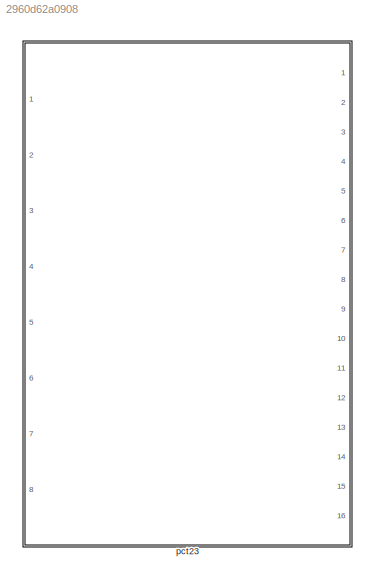
MODEL slx_2960d62a0908
KIND library
CONFIG AbsTol = auto
CONFIG EnableMultiTasking = off
CONFIG FixedStep = auto
CONFIG MaxStep = auto
CONFIG MinStep = auto
CONFIG RelTol = 1e-3
CONFIG SampleTimeConstraint = Unconstrained
CONFIG Solver = VariableStepAuto
CONFIG SolverName = VariableStepAuto
CONFIG StartTime = 0.0
CONFIG StopTime = 10.0
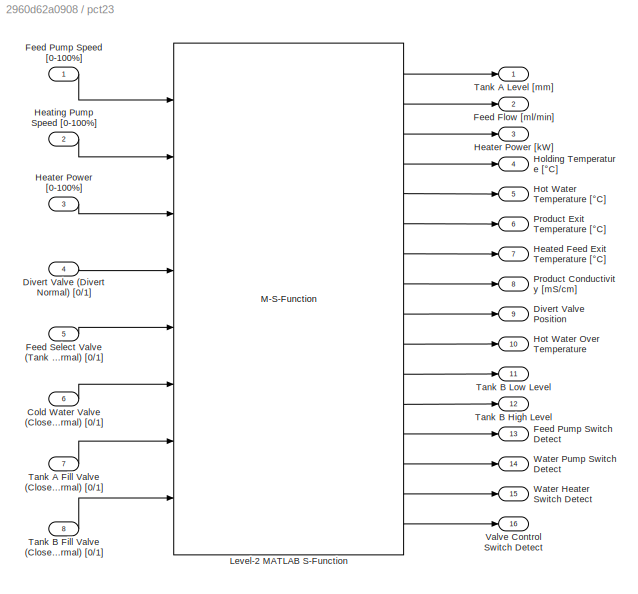
BLOCK [SubSystem] pct23
  Ports = [8, 16]
  RequestExecContextInheritance = off
BLOCK [Inport] pct23/Cold Water Valve (Closed Normal) [0//1]
  IconDisplay = Port number
  Port = 6
BLOCK [Inport] pct23/Divert Valve (Divert Normal) [0//1]
  IconDisplay = Port number
  Port = 4
BLOCK [Outport] pct23/Divert Valve Position
  IconDisplay = Port number
  Port = 9
BLOCK [Outport] pct23/Feed Flow [ml//min]
  IconDisplay = Port number
  Port = 2
BLOCK [Inport] pct23/Feed Pump Speed [0-100%]
  IconDisplay = Port number
BLOCK [Outport] pct23/Feed Pump Switch Detect
  IconDisplay = Port number
  Port = 13
BLOCK [Inport] pct23/Feed Select Valve (Tank A Normal) [0//1]
  IconDisplay = Port number
  Port = 5
BLOCK [Outport] pct23/Heated Feed Exit Temperature [°C]
  IconDisplay = Port number
  Port = 7
BLOCK [Inport] pct23/Heater Power [0-100%]
  IconDisplay = Port number
  Port = 3
BLOCK [Outport] pct23/Heater Power [kW]
  IconDisplay = Port number
  Port = 3
BLOCK [Inport] pct23/Heating Pump Speed [0-100%]
  IconDisplay = Port number
  Port = 2
BLOCK [Outport] pct23/Holding Temperature [°C]
  IconDisplay = Port number
  Port = 4
BLOCK [Outport] pct23/Hot Water Over Temperature
  IconDisplay = Port number
  Port = 10
BLOCK [Outport] pct23/Hot Water Temperature [°C]
  IconDisplay = Port number
  Port = 5
BLOCK [M-S-Function] pct23/Level-2 MATLAB S-Function
  FunctionName = elab_pct23
  Parameters = Ts, address, logging
  Ports = [8, 16]
BLOCK [Outport] pct23/Product Conductivity [mS//cm]
  IconDisplay = Port number
  Port = 8
BLOCK [Outport] pct23/Product Exit Temperature [°C]
  IconDisplay = Port number
  Port = 6
BLOCK [Inport] pct23/Tank A Fill Valve (Closed Normal) [0//1]
  IconDisplay = Port number
  Port = 7
BLOCK [Outport] pct23/Tank A Level [mm]
  IconDisplay = Port number
BLOCK [Inport] pct23/Tank B Fill Valve (Closed Normal) [0//1]
  IconDisplay = Port number
  Port = 8
BLOCK [Outport] pct23/Tank B High Level
  IconDisplay = Port number
  Port = 12
BLOCK [Outport] pct23/Tank B Low Level
  IconDisplay = Port number
  Port = 11
BLOCK [Outport] pct23/Valve Control Switch Detect
  IconDisplay = Port number
  Port = 16
BLOCK [Outport] pct23/Water Heater Switch Detect
  IconDisplay = Port number
  Port = 15
BLOCK [Outport] pct23/Water Pump Switch Detect
  IconDisplay = Port number
  Port = 14
LINE pct23/Cold Water Valve (Closed Normal) [0//1]:1 -> pct23/Level-2 MATLAB S-Function:6
LINE pct23/Divert Valve (Divert Normal) [0//1]:1 -> pct23/Level-2 MATLAB S-Function:4
LINE pct23/Feed Pump Speed [0-100%]:1 -> pct23/Level-2 MATLAB S-Function:1
LINE pct23/Feed Select Valve (Tank A Normal) [0//1]:1 -> pct23/Level-2 MATLAB S-Function:5
LINE pct23/Heater Power [0-100%]:1 -> pct23/Level-2 MATLAB S-Function:3
LINE pct23/Heating Pump Speed [0-100%]:1 -> pct23/Level-2 MATLAB S-Function:2
LINE pct23/Level-2 MATLAB S-Function:1 -> pct23/Tank A Level [mm]:1
LINE pct23/Level-2 MATLAB S-Function:10 -> pct23/Hot Water Over Temperature:1
LINE pct23/Level-2 MATLAB S-Function:11 -> pct23/Tank B Low Level:1
LINE pct23/Level-2 MATLAB S-Function:12 -> pct23/Tank B High Level:1
LINE pct23/Level-2 MATLAB S-Function:13 -> pct23/Feed Pump Switch Detect:1
LINE pct23/Level-2 MATLAB S-Function:14 -> pct23/Water Pump Switch Detect:1
LINE pct23/Level-2 MATLAB S-Function:15 -> pct23/Water Heater Switch Detect:1
LINE pct23/Level-2 MATLAB S-Function:16 -> pct23/Valve Control Switch Detect:1
LINE pct23/Level-2 MATLAB S-Function:2 -> pct23/Feed Flow [ml//min]:1
LINE pct23/Level-2 MATLAB S-Function:3 -> pct23/Heater Power [kW]:1
LINE pct23/Level-2 MATLAB S-Function:4 -> pct23/Holding Temperature [°C]:1
LINE pct23/Level-2 MATLAB S-Function:5 -> pct23/Hot Water Temperature [°C]:1
LINE pct23/Level-2 MATLAB S-Function:6 -> pct23/Product Exit Temperature [°C]:1
LINE pct23/Level-2 MATLAB S-Function:7 -> pct23/Heated Feed Exit Temperature [°C]:1
LINE pct23/Level-2 MATLAB S-Function:8 -> pct23/Product Conductivity [mS//cm]:1
LINE pct23/Level-2 MATLAB S-Function:9 -> pct23/Divert Valve Position:1
LINE pct23/Tank A Fill Valve (Closed Normal) [0//1]:1 -> pct23/Level-2 MATLAB S-Function:7
LINE pct23/Tank B Fill Valve (Closed Normal) [0//1]:1 -> pct23/Level-2 MATLAB S-Function:8
